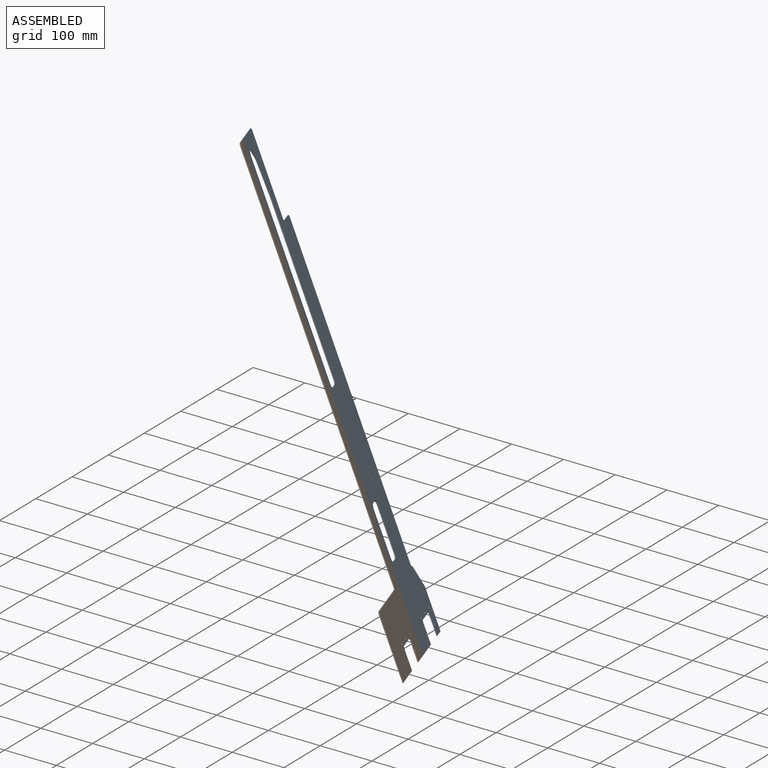
[diagram: assembled view]
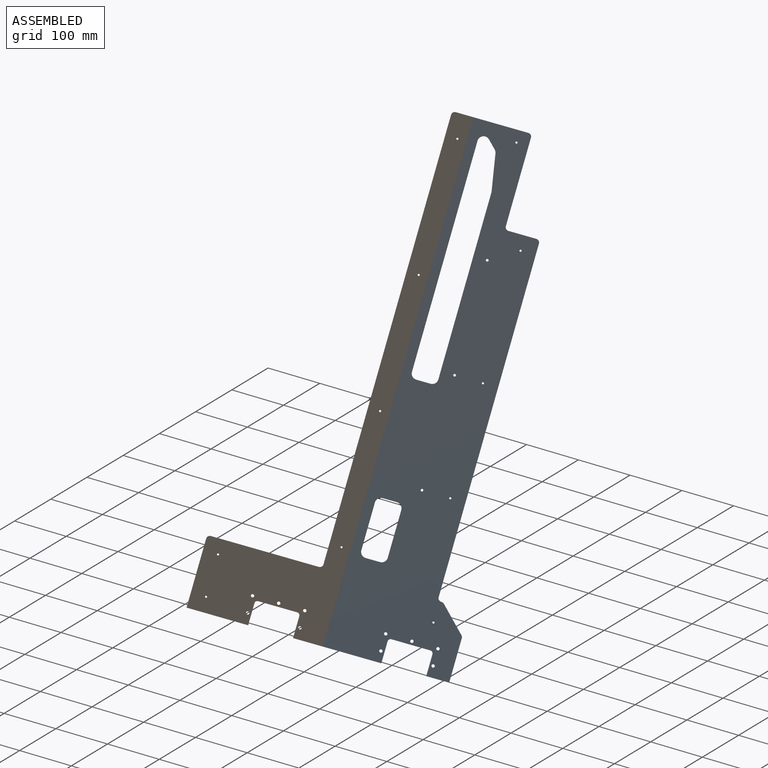
[diagram: assembled view, second angle]
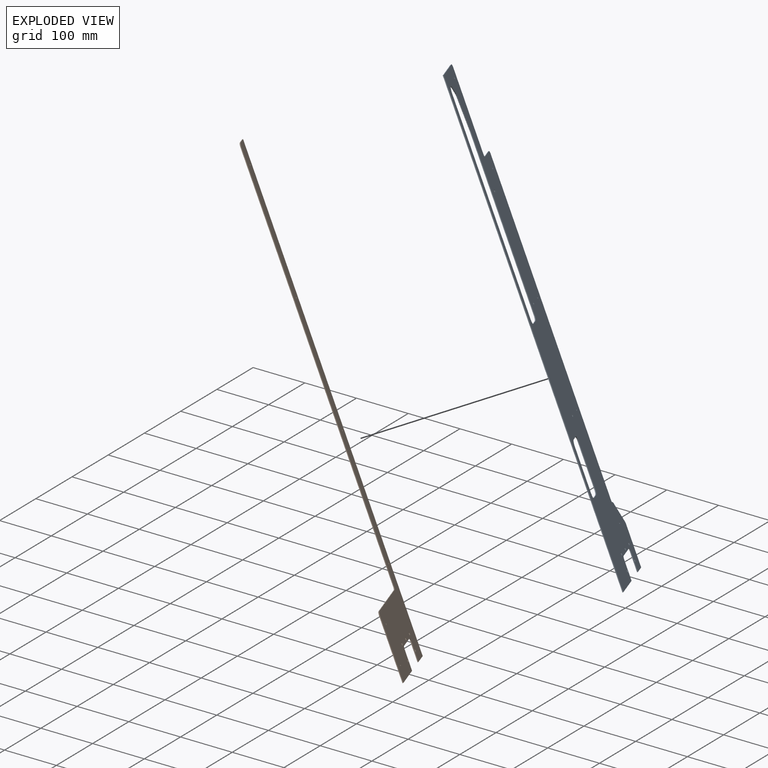
[diagram: exploded view]
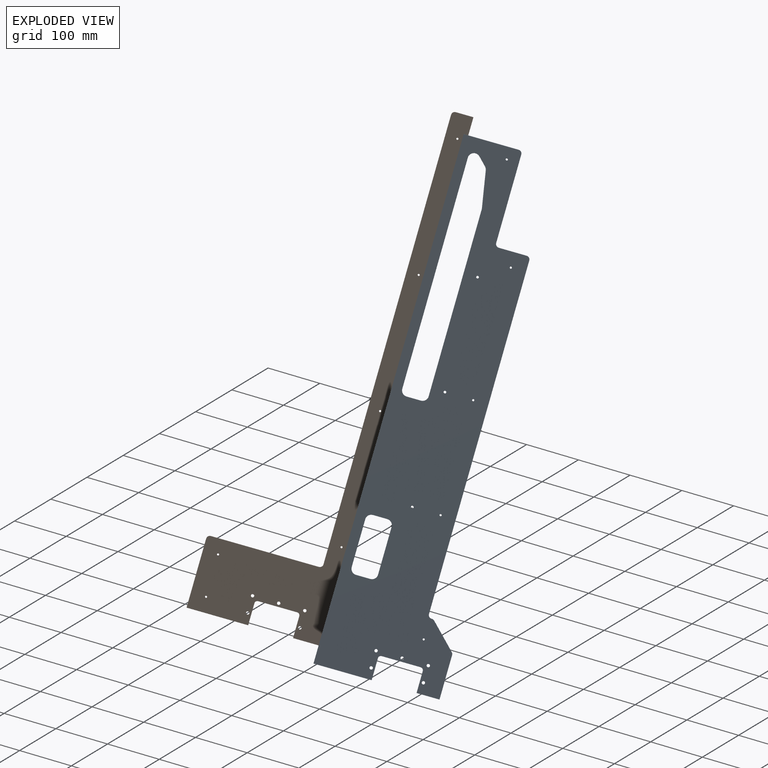
[diagram: exploded view, second angle]
ASSEMBLY  parts=2 mates=2
PART A: 57 faces, bbox 207.6x875x1.5 mm
  f0: plane 90.57x1.5mm, normal (0,1,0), area 135.9mm2, adj f2,f3,f24,f56
  f1: plane 95.83x1.5mm, normal (0,-1,0), area 143.7mm2, adj f2,f3,f4,f56
  f2: plane 875x207.57mm, normal (0,0,-1), area 107203.8mm2, adj f0,f1,f4,f5,f6,f7,f8,f9
  f3: plane 875x207.57mm, normal (0,0,1), area 107277.5mm2, adj f0,f1,f4,f5,f6,f7,f8,f9
  f4: plane 36.12x1.5mm, normal (1,0,0), area 54.2mm2, adj f1,f2,f3,f27
  f5: plane 64x1.5mm, normal (0,-1,0), area 96mm2, adj f2,f3,f27,f28
  f6: plane 36.12x1.5mm, normal (-1,0,0), area 54.2mm2, adj f2,f3,f7,f28
  f7: plane 37.74x1.5mm, normal (0,-1,0), area 56.6mm2, adj f2,f3,f6,f8
  f8: plane 73.51x1.5mm, normal (1,0,0), area 110.3mm2, adj f2,f3,f7,f25
  f9: plane 40.49x40.49mm, normal (0.71,0.71,0), area 85.9mm2, adj f2,f3,f25,f26
  f10: plane 1.5x0.51mm, normal (0,1,0), area 0.8mm2, adj f2,f3,f21,f26
  f11: plane 584.5x1.5mm, normal (1,0,0), area 876.8mm2, adj f2,f3,f21,f22
  f12: plane 46x1.5mm, normal (0,1,0), area 69mm2, adj f2,f3,f22,f23
  f13: plane 146.5x1.5mm, normal (1,0,0), area 219.8mm2, adj f2,f3,f23,f24
  f14: cylinder r=2.7mm len=5.4mm, axis (0,0,1), area 25.4mm2, adj f2,f3
  f15: cylinder r=2.7mm len=5.4mm, axis (0,0,1), area 25.4mm2, adj f2,f3
  f16: cylinder r=2.7mm len=5.4mm, axis (0,0,1), area 25.4mm2, adj f2,f3
  f17: cylinder r=2.7mm len=5.4mm, axis (0,0,1), area 25.4mm2, adj f2,f3
  f18: cylinder r=2.7mm len=5.4mm, axis (0,0,1), area 25.4mm2, adj f2,f3
  f19: cylinder r=1.73mm len=3.45mm, axis (0,0,1), area 16.3mm2, adj f2,f3
  f20: cylinder r=1.73mm len=3.45mm, axis (0,0,1), area 16.3mm2, adj f2,f3
  f21: cylinder r=6mm len=6mm, axis (0,0,1), area 14.1mm2, adj f2,f3,f10,f11
  f22: cylinder r=6mm len=6mm, axis (0,0,-1), area 14.1mm2, adj f2,f3,f11,f12
  f23: cylinder r=6mm len=6mm, axis (0,0,1), area 14.1mm2, adj f2,f3,f12,f13
  f24: cylinder r=6mm len=6mm, axis (0,0,-1), area 14.1mm2, adj f0,f2,f3,f13
  f25: cylinder r=6mm len=4.24mm, axis (0,0,-1), area 7.1mm2, adj f2,f3,f8,f9
  f26: cylinder r=6mm len=4.24mm, axis (0,0,-1), area 7.1mm2, adj f2,f3,f9,f10
  f27: cylinder r=5mm len=5mm, axis (0,0,1), area 11.8mm2, adj f2,f3,f4,f5
  f28: cylinder r=5mm len=5mm, axis (0,0,1), area 11.8mm2, adj f2,f3,f5,f6
  f29: cylinder r=10mm len=10mm, axis (0,0,-1), area 23.6mm2, adj f2,f3,f30,f36
  f30: plane 23.54x1.5mm, normal (0,1,0), area 35.3mm2, adj f2,f3,f29,f31
  f31: cylinder r=10mm len=10mm, axis (0,0,-1), area 23.6mm2, adj f2,f3,f30,f32
  f32: plane 79.06x1.5mm, normal (-1,0,0), area 118.6mm2, adj f2,f3,f31,f33
  f33: cylinder r=10mm len=10mm, axis (0,0,-1), area 23.6mm2, adj f2,f3,f32,f34
  f34: plane 23.54x1.5mm, normal (0,-1,0), area 35.3mm2, adj f2,f3,f33,f35
  f35: cylinder r=10mm len=10mm, axis (0,0,-1), area 23.6mm2, adj f2,f3,f34,f36
  f36: plane 79.06x1.5mm, normal (1,0,0), area 118.6mm2, adj f2,f3,f29,f35
  f37: cylinder r=10mm len=1.74mm, axis (0,0,-1), area 2.6mm2, adj f2,f3,f38,f46
  f38: plane 60.12x10.6mm, normal (-0.98,-0.17,0), area 91.6mm2, adj f2,f3,f37,f39
  f39: cylinder r=10mm len=5.33mm, axis (0,0,-1), area 9.2mm2, adj f2,f3,f38,f40
  f40: plane 12.94x12.94mm, normal (-0.71,-0.71,0), area 27.4mm2, adj f2,f3,f39,f41
  f41: cylinder r=10mm len=17.07mm, axis (0,0,-1), area 35.3mm2, adj f2,f3,f40,f42
  f42: plane 381.99x1.5mm, normal (1,0,0), area 573mm2, adj f2,f3,f41,f43
  f43: cylinder r=10mm len=10mm, axis (0,0,-1), area 23.6mm2, adj f2,f3,f42,f44
  f44: plane 23.54x1.5mm, normal (0,1,0), area 35.3mm2, adj f2,f3,f43,f45
  f45: cylinder r=10mm len=10mm, axis (0,0,-1), area 23.6mm2, adj f2,f3,f44,f46
  f46: plane 308.93x1.5mm, normal (-1,0,0), area 463.4mm2, adj f2,f3,f37,f45
  f47: cylinder r=1.75mm len=3.5mm, axis (0,0,-1), area 6.7mm2, adj f3,f48
  f48: cone r=3.3mm half-angle=60deg, axis (0,0,-1), area 28.4mm2, adj f2,f47
  f49: cylinder r=1.75mm len=3.5mm, axis (0,0,-1), area 6.7mm2, adj f3,f50
  f50: cone r=3.3mm half-angle=60deg, axis (0,0,-1), area 28.4mm2, adj f2,f49
  f51: cylinder r=1.75mm len=3.5mm, axis (0,0,-1), area 6.7mm2, adj f3,f52
  f52: cone r=3.3mm half-angle=60deg, axis (0,0,-1), area 28.4mm2, adj f2,f51
  f53: cylinder r=2.15mm len=4.31mm, axis (0,0,-1), area 20.3mm2, adj f2,f3
  f54: cylinder r=2.15mm len=4.31mm, axis (0,0,-1), area 20.3mm2, adj f2,f3
  f55: cylinder r=2.15mm len=4.31mm, axis (0,0,-1), area 20.3mm2, adj f2,f3
  f56: plane 875x1.5mm, normal (-1,0,0), area 1312.5mm2, adj f0,f1,f2,f3
PART B: 28 faces, bbox 1.5x875x225.1 mm
  f0: plane 875x225.09mm, normal (-1,0,0), area 50290.3mm2, adj f1,f2,f3,f4,f5,f6,f7,f8
  f1: plane 29.09x1.5mm, normal (0,1,0), area 43.6mm2, adj f0,f2,f25,f27
  f2: cylinder r=6mm len=6mm, axis (-1,0,0), area 14.1mm2, adj f0,f1,f3,f25
  f3: plane 743x1.5mm, normal (0,0,1), area 1114.5mm2, adj f0,f2,f4,f25
  f4: cylinder r=6mm len=6mm, axis (1,0,0), area 14.1mm2, adj f0,f3,f5,f25
  f5: plane 178x1.5mm, normal (0,1,0), area 267mm2, adj f0,f4,f6,f25
  f6: cylinder r=6mm len=6mm, axis (-1,0,0), area 14.1mm2, adj f0,f5,f7,f25
  f7: plane 114x1.5mm, normal (0,0,1), area 171mm2, adj f0,f6,f8,f25
  f8: plane 101.5x1.5mm, normal (0,-1,0), area 152.3mm2, adj f0,f7,f9,f25
  f9: plane 36.12x1.5mm, normal (0,0,-1), area 54.2mm2, adj f0,f8,f10,f25
  f10: cylinder r=5mm len=5mm, axis (1,0,0), area 11.8mm2, adj f0,f9,f11,f25
  f11: plane 64x1.5mm, normal (0,-1,0), area 96mm2, adj f0,f10,f12,f25
  f12: cylinder r=5mm len=5mm, axis (1,0,0), area 11.8mm2, adj f0,f11,f13,f25
  f13: plane 36.12x1.5mm, normal (0,0,1), area 54.2mm2, adj f0,f12,f25,f26
  f14: cylinder r=1.73mm len=3.45mm, axis (1,0,0), area 16.3mm2, adj f0,f25
  f15: cylinder r=2.7mm len=5.4mm, axis (1,0,0), area 25.4mm2, adj f0,f25
  f16: cylinder r=2.7mm len=5.4mm, axis (1,0,0), area 25.4mm2, adj f0,f25
  f17: cylinder r=2.7mm len=5.4mm, axis (1,0,0), area 25.4mm2, adj f0,f25
  f18: cylinder r=2.7mm len=5.4mm, axis (1,0,0), area 25.4mm2, adj f0,f25
  f19: cylinder r=2.7mm len=5.4mm, axis (1,0,0), area 25.4mm2, adj f0,f25
  f20: cylinder r=1.73mm len=3.45mm, axis (1,0,0), area 16.3mm2, adj f0,f25
  f21: cylinder r=1.73mm len=3.45mm, axis (1,0,0), area 16.3mm2, adj f0,f25
  f22: cylinder r=1.73mm len=3.45mm, axis (1,0,0), area 16.3mm2, adj f0,f25
  f23: cylinder r=1.73mm len=3.45mm, axis (1,0,0), area 16.3mm2, adj f0,f25
  f24: cylinder r=1.73mm len=3.45mm, axis (1,0,0), area 16.3mm2, adj f0,f25
  f25: plane 875x225.09mm, normal (1,0,0), area 50290.3mm2, adj f1,f2,f3,f4,f5,f6,f7,f8
  f26: plane 49.59x1.5mm, normal (0,-1,0), area 74.4mm2, adj f0,f13,f25,f27
  f27: plane 875x1.5mm, normal (0,0,-1), area 1312.5mm2, adj f0,f1,f25,f26
PLACE A rot(axis=(0.24,0.61,0.76),121.8deg) t=(804.35,-37.75,-72.19)mm
PLACE B rot(axis=(0.89,0.05,0.46),88deg) t=(719.59,-343.42,-99.49)mm
MATE planar A.f2 <-> B.f0  axis (-0.79,-0.5,-0.35) through (424.35,-62.04,167.63)mm
MATE fastened B.f27 <-> A.f56  axis (-0.44,0.87,-0.24) through (436.39,-132.41,243.06)mm
